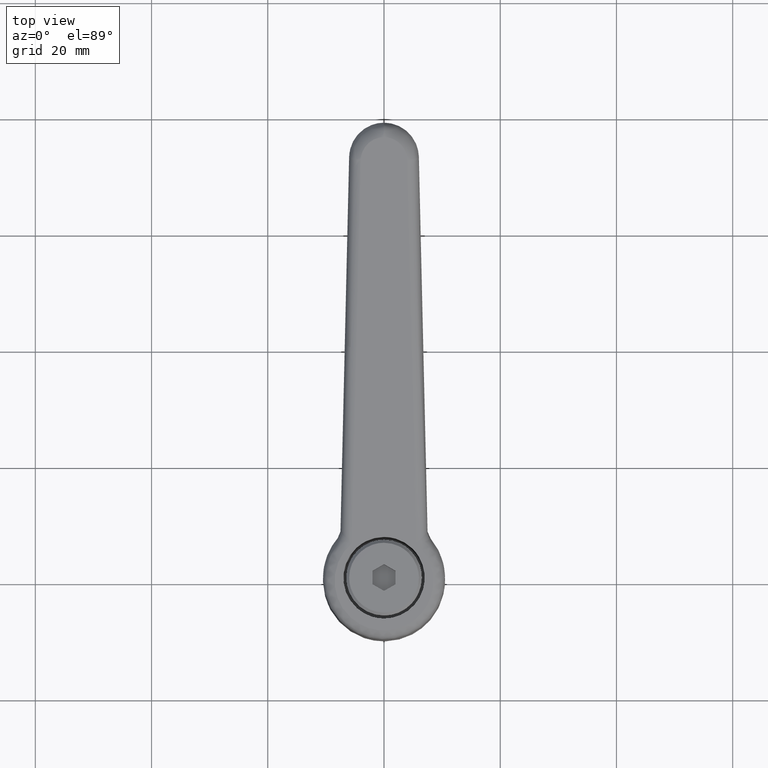
[diagram: clean part render]
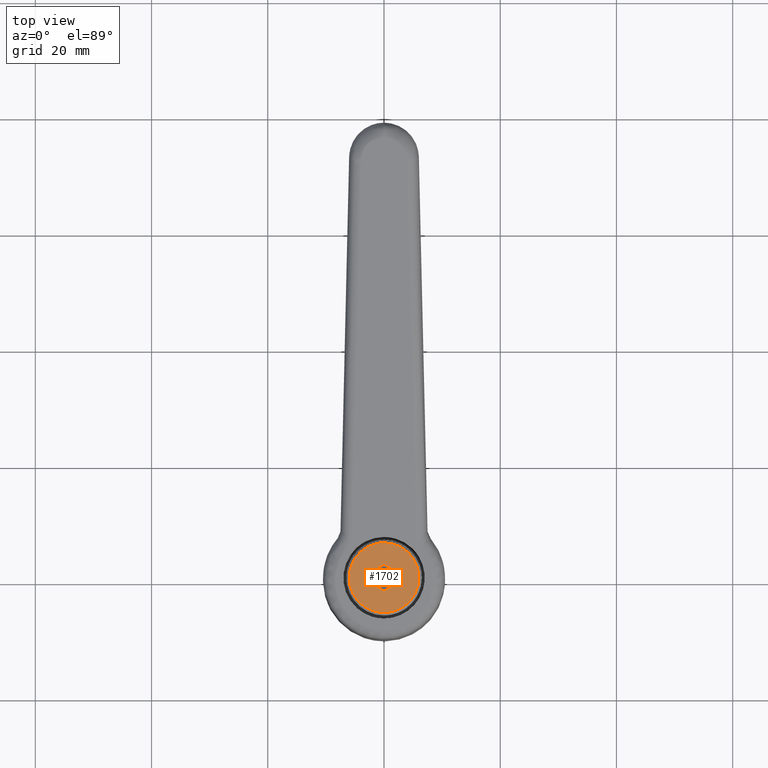
[diagram: same view with one face highlighted and labeled with its STEP entity id]
A machine part, top view. The second image highlights one B-rep face of the part: STEP entity #1702.
In plain terms, the highlighted face is a freeform B-spline surface patch.
Its self-contained STEP definition (entity closure, byte-faithful):
#1345=CARTESIAN_POINT('',(-3.874452470479010,-4.581334141650516,27.999999876015149));
#1346=VERTEX_POINT('',#1345);
#1347=CARTESIAN_POINT('',(-6.000000000000100,0.0,28.0));
#1348=VERTEX_POINT('',#1347);
#1349=CARTESIAN_POINT('',(-3.874452470479010,-4.581334141650516,27.999999876015149));
#1350=CARTESIAN_POINT('',(-4.351522456674711,-4.178335978392469,27.999999886921490));
#1351=CARTESIAN_POINT('',(-5.015918116867635,-3.408645963267337,27.999999907751739));
#1352=CARTESIAN_POINT('',(-5.610985470630364,-2.212055596099227,27.999999940134909));
#1353=CARTESIAN_POINT('',(-5.925069777193333,-1.140285195478191,27.999999969140742));
#1354=CARTESIAN_POINT('',(-6.000058837730347,-0.407253901723893,27.999999988978139));
#1355=CARTESIAN_POINT('',(-6.000000000000100,0.0,28.0));
#1356=B_SPLINE_CURVE_WITH_KNOTS('',3,(#1349,#1350,#1351,#1352,#1353,#1354,#1355),.UNSPECIFIED.,.F.,.U.,(4,1,1,1,4),(0.000000028695514,1.873376666998953,3.013674322698468,3.991088894102448,5.212849921487050),.UNSPECIFIED.);
#1357=EDGE_CURVE('',#1346,#1348,#1356,.T.);
#1359=CARTESIAN_POINT('',(0.000001005839649,6.000000000000015,28.0));
#1360=VERTEX_POINT('',#1359);
#1361=CARTESIAN_POINT('',(-6.000000000000100,0.0,28.0));
#1362=CARTESIAN_POINT('',(-6.000060808717701,0.417240044283461,28.000000000000011));
#1363=CARTESIAN_POINT('',(-5.910051157273452,1.276251997743068,28.000000000000028));
#1364=CARTESIAN_POINT('',(-5.530531609845804,2.425177402200416,27.999999999999929));
#1365=CARTESIAN_POINT('',(-4.887010092079206,3.561233745123274,28.0));
#1366=CARTESIAN_POINT('',(-4.012190887436157,4.538495612524304,28.000000000000171));
#1367=CARTESIAN_POINT('',(-2.892202485540609,5.306779204139877,27.999999999999709));
#1368=CARTESIAN_POINT('',(-1.570651510556697,5.854174823126291,28.000000000000480));
#1369=CARTESIAN_POINT('',(-0.589084727602496,6.000287947796309,27.999999999999599));
#1370=CARTESIAN_POINT('',(0.000001005839649,6.000000000000015,28.0));
#1371=B_SPLINE_CURVE_WITH_KNOTS('',3,(#1361,#1362,#1363,#1364,#1365,#1366,#1367,#1368,#1369,#1370),.UNSPECIFIED.,.F.,.U.,(4,1,1,1,1,1,1,4),(0.000000089235074,1.251717505598512,2.577105816008246,3.607966831506419,5.154177311836538,6.479573191237834,7.657683365137249,9.424837664165491),.UNSPECIFIED.);
#1372=EDGE_CURVE('',#1348,#1360,#1371,.T.);
#1374=CARTESIAN_POINT('',(6.000000000000100,0.0,28.0));
#1375=VERTEX_POINT('',#1374);
#1376=CARTESIAN_POINT('',(0.000001005839649,6.000000000000015,28.0));
#1377=CARTESIAN_POINT('',(0.417242472686531,6.000066778348552,27.999999999999979));
#1378=CARTESIAN_POINT('',(1.153526203515611,5.922873827808137,28.000000000000039));
#1379=CARTESIAN_POINT('',(2.121335972452656,5.635757156174200,27.999999999999972));
#1380=CARTESIAN_POINT('',(2.968802066096131,5.241254222079943,28.000000000000050));
#1381=CARTESIAN_POINT('',(3.911131000985891,4.611825199598446,27.999999999999950));
#1382=CARTESIAN_POINT('',(4.718284596016456,3.774347957929178,27.999999999999950));
#1383=CARTESIAN_POINT('',(5.271170278755769,2.900989083842335,28.000000000000039));
#1384=CARTESIAN_POINT('',(5.623877894030053,2.143294384277223,27.999999999999961));
#1385=CARTESIAN_POINT('',(5.915578321017076,1.202608478000955,28.000000000000050));
#1386=CARTESIAN_POINT('',(6.000079303040283,0.441786417525804,28.0));
#1387=CARTESIAN_POINT('',(6.000000000000100,0.0,28.0));
#1388=B_SPLINE_CURVE_WITH_KNOTS('',3,(#1376,#1377,#1378,#1379,#1380,#1381,#1382,#1383,#1384,#1385,#1386,#1387),.UNSPECIFIED.,.F.,.U.,(4,1,1,1,1,1,1,1,1,4),(0.000000089587349,1.251717355323471,2.208945721163513,3.018904583976282,4.049739859899987,5.595986352268658,6.479572411366839,7.142259745054916,8.099485909225503,9.424836530342660),.UNSPECIFIED.);
#1389=EDGE_CURVE('',#1360,#1375,#1388,.T.);
#1391=CARTESIAN_POINT('',(4.352245952844611,-4.130127194878293,28.000000125557602));
#1392=VERTEX_POINT('',#1391);
#1393=CARTESIAN_POINT('',(6.000000000000100,0.0,28.0));
#1394=CARTESIAN_POINT('',(6.000045424996531,-0.379612171893334,28.000000011540411));
#1395=CARTESIAN_POINT('',(5.934478326868989,-1.067640720869325,28.000000032456722));
#1396=CARTESIAN_POINT('',(5.695959722343974,-1.939860562491052,28.000000058972478));
#1397=CARTESIAN_POINT('',(5.254657265738380,-2.991497111807373,28.000000090943200));
#1398=CARTESIAN_POINT('',(4.777143913442343,-3.682854755577615,28.000000111959700));
#1399=CARTESIAN_POINT('',(4.352245952844611,-4.130127194878293,28.000000125557602));
#1400=B_SPLINE_CURVE_WITH_KNOTS('',3,(#1393,#1394,#1395,#1396,#1397,#1398,#1399),.UNSPECIFIED.,.F.,.U.,(4,1,1,1,4),(0.000000023838981,1.138833996307661,2.064145096017951,2.704720204488504,4.555335913667436),.UNSPECIFIED.);
#1401=EDGE_CURVE('',#1375,#1392,#1400,.T.);
#1435=CARTESIAN_POINT('',(-0.000001005839588,-6.000000000000016,28.0));
#1436=VERTEX_POINT('',#1435);
#1437=CARTESIAN_POINT('',(-0.000001005839588,-6.000000000000016,28.0));
#1438=CARTESIAN_POINT('',(-0.460694119588255,-6.000090699942350,27.999999985257531));
#1439=CARTESIAN_POINT('',(-1.228443208645316,-5.911101498060759,27.999999960689159));
#1440=CARTESIAN_POINT('',(-2.570759232670172,-5.485491498265746,27.999999917733991));
#1441=CARTESIAN_POINT('',(-3.388869151753468,-4.992436863035616,27.999999891554161));
#1442=CARTESIAN_POINT('',(-3.874452470479010,-4.581334141650516,27.999999876015149));
#1443=B_SPLINE_CURVE_WITH_KNOTS('',3,(#1437,#1438,#1439,#1440,#1441,#1442),.UNSPECIFIED.,.F.,.U.,(4,1,1,4),(0.000000021203194,1.382062561272078,2.303429748361824,4.211988462326859),.UNSPECIFIED.);
#1444=EDGE_CURVE('',#1436,#1346,#1443,.T.);
#1450=CARTESIAN_POINT('',(4.352245952844611,-4.130127194878293,28.000000125557602));
#1451=CARTESIAN_POINT('',(4.038064179835203,-4.461343479273781,28.000000116493780));
#1452=CARTESIAN_POINT('',(3.509685331660351,-4.903881062333199,28.000000101250741));
#1453=CARTESIAN_POINT('',(2.609075257993904,-5.427042666602988,28.000000075268922));
#1454=CARTESIAN_POINT('',(1.521582226362567,-5.862017288380053,28.000000043896261));
#1455=CARTESIAN_POINT('',(0.583354683960231,-6.000263291250786,28.000000016828999));
#1456=CARTESIAN_POINT('',(-0.000001005839588,-6.000000000000016,28.0));
#1457=B_SPLINE_CURVE_WITH_KNOTS('',3,(#1450,#1451,#1452,#1453,#1454,#1455,#1456),.UNSPECIFIED.,.F.,.U.,(4,1,1,1,4),(0.000000024407098,1.369547789655742,2.054324656379248,3.119523283592056,4.869502090629728),.UNSPECIFIED.);
#1458=EDGE_CURVE('',#1392,#1436,#1457,.T.);
#1519=CARTESIAN_POINT('',(-2.309402000000205,0.0,28.0));
#1520=VERTEX_POINT('',#1519);
#1526=CARTESIAN_POINT('',(-1.154701000000102,-2.0,28.0));
#1527=VERTEX_POINT('',#1526);
#1528=CARTESIAN_POINT('',(-1.154701000000102,-2.0,28.0));
#1529=CARTESIAN_POINT('',(-2.309402000000205,0.0,28.0));
#1530=QUASI_UNIFORM_CURVE('',1,(#1528,#1529),.UNSPECIFIED.,.F.,.U.);
#1531=EDGE_CURVE('',#1527,#1520,#1530,.T.);
#1548=CARTESIAN_POINT('',(1.154701000000000,-2.0,28.0));
#1549=VERTEX_POINT('',#1548);
#1550=CARTESIAN_POINT('',(1.154701000000000,-2.0,28.0));
#1551=CARTESIAN_POINT('',(-1.154701000000102,-2.0,28.0));
#1552=QUASI_UNIFORM_CURVE('',1,(#1550,#1551),.UNSPECIFIED.,.F.,.U.);
#1553=EDGE_CURVE('',#1549,#1527,#1552,.T.);
#1570=CARTESIAN_POINT('',(2.309402000000000,0.0,28.0));
#1571=VERTEX_POINT('',#1570);
#1572=CARTESIAN_POINT('',(2.309402000000000,0.0,28.0));
#1573=CARTESIAN_POINT('',(1.154701000000000,-2.0,28.0));
#1574=QUASI_UNIFORM_CURVE('',1,(#1572,#1573),.UNSPECIFIED.,.F.,.U.);
#1575=EDGE_CURVE('',#1571,#1549,#1574,.T.);
#1592=CARTESIAN_POINT('',(1.154701000000000,2.0,28.0));
#1593=VERTEX_POINT('',#1592);
#1594=CARTESIAN_POINT('',(1.154701000000000,2.0,28.0));
#1595=CARTESIAN_POINT('',(2.309402000000000,0.0,28.0));
#1596=QUASI_UNIFORM_CURVE('',1,(#1594,#1595),.UNSPECIFIED.,.F.,.U.);
#1597=EDGE_CURVE('',#1593,#1571,#1596,.T.);
#1614=CARTESIAN_POINT('',(-1.154701000000102,2.0,28.0));
#1615=VERTEX_POINT('',#1614);
#1616=CARTESIAN_POINT('',(-1.154701000000102,2.0,28.0));
#1617=CARTESIAN_POINT('',(1.154701000000000,2.0,28.0));
#1618=QUASI_UNIFORM_CURVE('',1,(#1616,#1617),.UNSPECIFIED.,.F.,.U.);
#1619=EDGE_CURVE('',#1615,#1593,#1618,.T.);
#1636=CARTESIAN_POINT('',(-2.309402000000205,0.0,28.0));
#1637=CARTESIAN_POINT('',(-1.154701000000102,2.0,28.0));
#1638=QUASI_UNIFORM_CURVE('',1,(#1636,#1637),.UNSPECIFIED.,.F.,.U.);
#1639=EDGE_CURVE('',#1520,#1615,#1638,.T.);
#1681=CARTESIAN_POINT('',(-6.599399976741782,-6.599399976741689,28.0));
#1682=CARTESIAN_POINT('',(6.599400298606862,-6.599399976741689,28.0));
#1683=CARTESIAN_POINT('',(-6.599399976741782,6.599400298606770,28.0));
#1684=CARTESIAN_POINT('',(6.599400298606862,6.599400298606770,28.0));
#1685=B_SPLINE_SURFACE_WITH_KNOTS('',1,1,((#1681,#1683),(#1682,#1684)),.UNSPECIFIED.,.F.,.F.,.U.,(2,2),(2,2),(0.0,13.198800275348640),(0.0,13.198800275348461),.UNSPECIFIED.);
#1686=ORIENTED_EDGE('',*,*,#1357,.F.);
#1687=ORIENTED_EDGE('',*,*,#1444,.F.);
#1688=ORIENTED_EDGE('',*,*,#1458,.F.);
#1689=ORIENTED_EDGE('',*,*,#1401,.F.);
#1690=ORIENTED_EDGE('',*,*,#1389,.F.);
#1691=ORIENTED_EDGE('',*,*,#1372,.F.);
#1692=EDGE_LOOP('',(#1686,#1687,#1688,#1689,#1690,#1691));
#1693=FACE_OUTER_BOUND('',#1692,.T.);
#1694=ORIENTED_EDGE('',*,*,#1639,.T.);
#1695=ORIENTED_EDGE('',*,*,#1619,.T.);
#1696=ORIENTED_EDGE('',*,*,#1597,.T.);
#1697=ORIENTED_EDGE('',*,*,#1575,.T.);
#1698=ORIENTED_EDGE('',*,*,#1553,.T.);
#1699=ORIENTED_EDGE('',*,*,#1531,.T.);
#1700=EDGE_LOOP('',(#1694,#1695,#1696,#1697,#1698,#1699));
#1701=FACE_BOUND('',#1700,.T.);
#1702=ADVANCED_FACE('',(#1693,#1701),#1685,.T.);